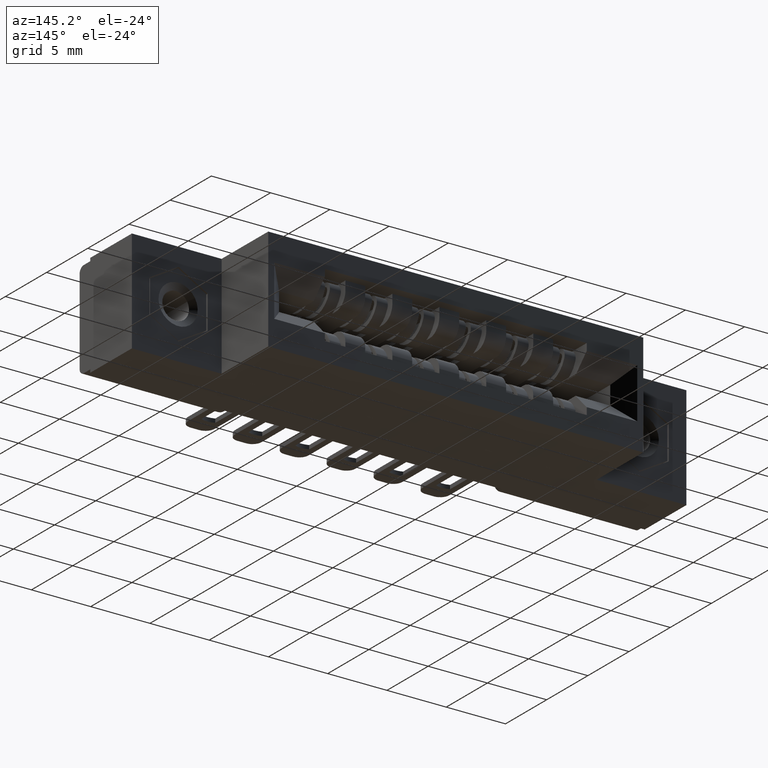
[diagram: clean part render]
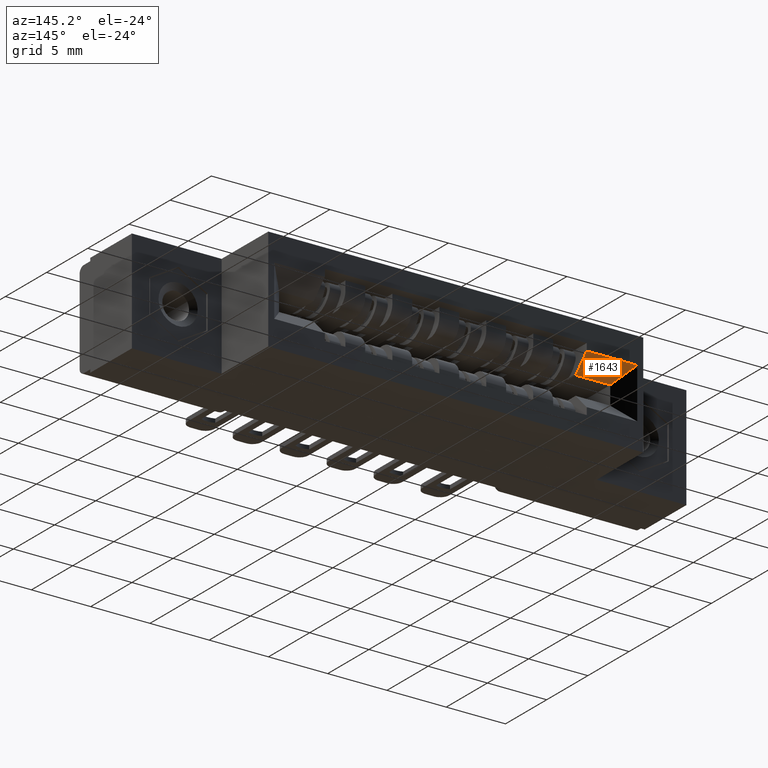
[diagram: same view with one face highlighted and labeled with its STEP entity id]
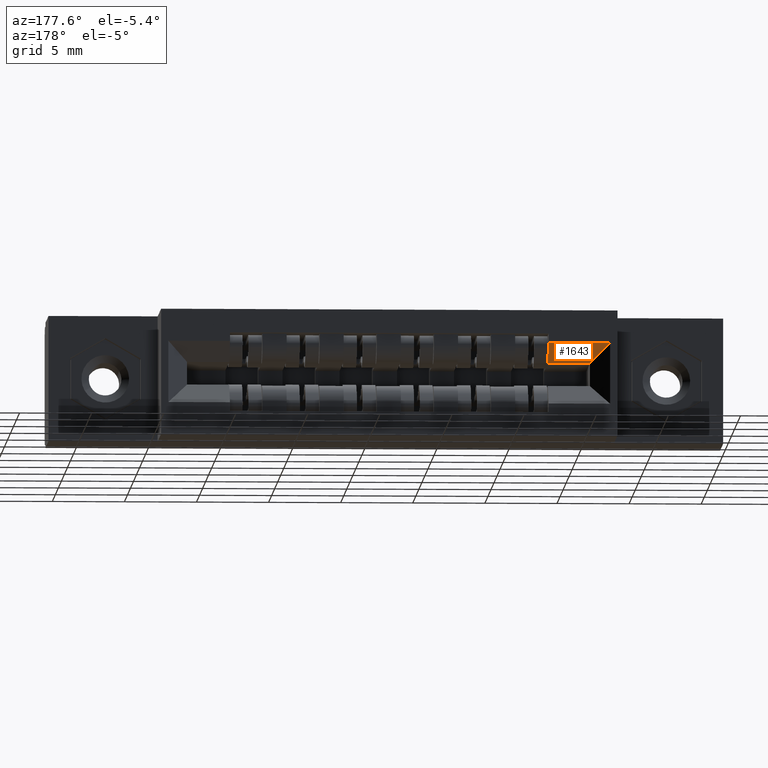
[diagram: same view with one face highlighted and labeled with its STEP entity id]
A machine part, auxiliary view. The second image highlights one B-rep face of the part: STEP entity #1643.
A second angle (auxiliary view) of the same face is appended — the face is thin or edge-on in the first view.
In plain terms, the highlighted planar face has unit normal (0, -0.7071, 0.7071).
Its self-contained STEP definition (entity closure, byte-faithful):
#1501 = LINE ( 'NONE', #3902, #3963 ) ;
#1530 = CARTESIAN_POINT ( 'NONE',  ( 0.3709999999999996100, 0.4200000000000000400, -0.1405000000000001200 ) ) ;
#1544 = VERTEX_POINT ( 'NONE', #5127 ) ;
#1643 = ADVANCED_FACE ( 'NONE', ( #8069 ), #11074, .F. ) ;
#1655 = EDGE_LOOP ( 'NONE', ( #2365, #2677, #11501, #10390 ) ) ;
#1697 = VECTOR ( 'NONE', #10348, 39.37007874015748100 ) ;
#1940 = DIRECTION ( 'NONE',  ( 0.0000000000000000000, -0.7071067811865461300, -0.7071067811865489100 ) ) ;
#2153 = DIRECTION ( 'NONE',  ( 1.097561500847079200E-017, -0.7071067811865489100, 0.7071067811865461300 ) ) ;
#2233 = EDGE_CURVE ( 'NONE', #1544, #4330, #4323, .T. ) ;
#2365 = ORIENTED_EDGE ( 'NONE', *, *, #10416, .F. ) ;
#2677 = ORIENTED_EDGE ( 'NONE', *, *, #2233, .F. ) ;
#3902 = CARTESIAN_POINT ( 'NONE',  ( 0.4860000000000004300, 0.4200000000000000400, -0.1405000000000001200 ) ) ;
#3922 = DIRECTION ( 'NONE',  ( -0.0000000000000000000, 0.7071067811865461300, 0.7071067811865489100 ) ) ;
#3963 = VECTOR ( 'NONE', #3922, 39.37007874015748100 ) ;
#4227 = VECTOR ( 'NONE', #5783, 39.37007874015748100 ) ;
#4323 = LINE ( 'NONE', #9723, #4227 ) ;
#4330 = VERTEX_POINT ( 'NONE', #4658 ) ;
#4627 = VERTEX_POINT ( 'NONE', #9277 ) ;
#4658 = CARTESIAN_POINT ( 'NONE',  ( 0.4860000000000004300, 0.4200000000000000400, -0.1405000000000001200 ) ) ;
#5127 = CARTESIAN_POINT ( 'NONE',  ( 0.3709999999999996100, 0.4199999999999999800, -0.1405000000000001200 ) ) ;
#5299 = VECTOR ( 'NONE', #9153, 39.37007874015748100 ) ;
#5467 = AXIS2_PLACEMENT_3D ( 'NONE', #1530, #2153, #1940 ) ;
#5783 = DIRECTION ( 'NONE',  ( 1.000000000000000000, 0.0000000000000000000, -1.552186360036511700E-017 ) ) ;
#5831 = VERTEX_POINT ( 'NONE', #7512 ) ;
#7512 = CARTESIAN_POINT ( 'NONE',  ( 0.3179999999999993900, 0.4729999999999999800, -0.08749999999999996700 ) ) ;
#7634 = LINE ( 'NONE', #9170, #5299 ) ;
#8069 = FACE_OUTER_BOUND ( 'NONE', #1655, .T. ) ;
#8322 = EDGE_CURVE ( 'NONE', #4627, #5831, #7634, .T. ) ;
#9153 = DIRECTION ( 'NONE',  ( -1.000000000000000000, 0.0000000000000000000, 1.552186360036511700E-017 ) ) ;
#9170 = CARTESIAN_POINT ( 'NONE',  ( 3.965836149893288200E-018, 0.4729999999999999800, -0.08749999999999995300 ) ) ;
#9277 = CARTESIAN_POINT ( 'NONE',  ( 0.4860000000000004300, 0.4729999999999999800, -0.08749999999999996700 ) ) ;
#9616 = EDGE_CURVE ( 'NONE', #5831, #1544, #10960, .T. ) ;
#9723 = CARTESIAN_POINT ( 'NONE',  ( 0.3709999999999996100, 0.4200000000000000400, -0.1405000000000001200 ) ) ;
#10348 = DIRECTION ( 'NONE',  ( 0.5773502691896269500, -0.5773502691896240700, -0.5773502691896262900 ) ) ;
#10390 = ORIENTED_EDGE ( 'NONE', *, *, #8322, .F. ) ;
#10415 = CARTESIAN_POINT ( 'NONE',  ( 0.3709999999999996100, 0.4200000000000000400, -0.1405000000000001200 ) ) ;
#10416 = EDGE_CURVE ( 'NONE', #4330, #4627, #1501, .T. ) ;
#10960 = LINE ( 'NONE', #10415, #1697 ) ;
#11074 = PLANE ( 'NONE',  #5467 ) ;
#11501 = ORIENTED_EDGE ( 'NONE', *, *, #9616, .F. ) ;